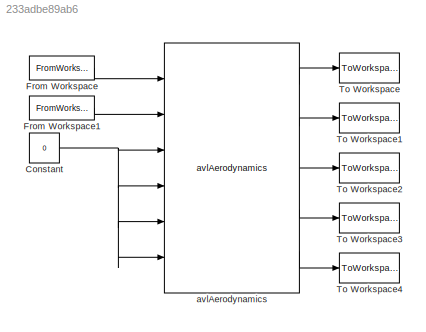
MODEL slx_233adbe89ab6
KIND model
CONFIG AbsTol = auto
CONFIG EnableMultiTasking = off
CONFIG FixedStep = Ts
CONFIG MaxStep = auto
CONFIG MinStep = auto
CONFIG RelTol = 1e-3
CONFIG SampleTimeConstraint = Unconstrained
CONFIG SolverName = FixedStepAuto
CONFIG StartTime = 0.0
CONFIG StopTime = duration_s
BLOCK [Constant] Constant
  Value = 0
BLOCK [FromWorkspace] From Workspace
  VariableName = alpha
BLOCK [FromWorkspace] From Workspace1
  VariableName = beta
BLOCK [ToWorkspace] To Workspace
  FixptAsFi = on
  MaxDataPoints = inf
  Ports = [1]
  SampleTime = -1
  SaveFormat = Timeseries
  VariableName = CL
BLOCK [ToWorkspace] To Workspace1
  FixptAsFi = on
  MaxDataPoints = inf
  Ports = [1]
  SampleTime = -1
  SaveFormat = Timeseries
  VariableName = CD
BLOCK [ToWorkspace] To Workspace2
  FixptAsFi = on
  MaxDataPoints = inf
  Ports = [1]
  SampleTime = -1
  SaveFormat = Timeseries
  VariableName = CMx
BLOCK [ToWorkspace] To Workspace3
  FixptAsFi = on
  MaxDataPoints = inf
  Ports = [1]
  SampleTime = -1
  SaveFormat = Timeseries
  VariableName = CMy
BLOCK [ToWorkspace] To Workspace4
  FixptAsFi = on
  MaxDataPoints = inf
  Ports = [1]
  SampleTime = -1
  SaveFormat = Timeseries
  VariableName = CMz
BLOCK [Reference] avlAerodynamics  REF=avlAerodynamics2D_ul/avlAerodynamics
  Ports = [6, 5]
  SourceBlock = avlAerodynamics2D_ul/avlAerodynamics
NET Constant:1 -> avlAerodynamics:3, avlAerodynamics:4, avlAerodynamics:5, avlAerodynamics:6
LINE From Workspace1:1 -> avlAerodynamics:2
LINE From Workspace:1 -> avlAerodynamics:1
LINE avlAerodynamics:1 -> To Workspace:1
LINE avlAerodynamics:2 -> To Workspace1:1
LINE avlAerodynamics:3 -> To Workspace2:1
LINE avlAerodynamics:4 -> To Workspace3:1
LINE avlAerodynamics:5 -> To Workspace4:1
note: NET lines group one-source signal fan-out (src -> all destinations, sorted); 1:1 wires keep LINE
